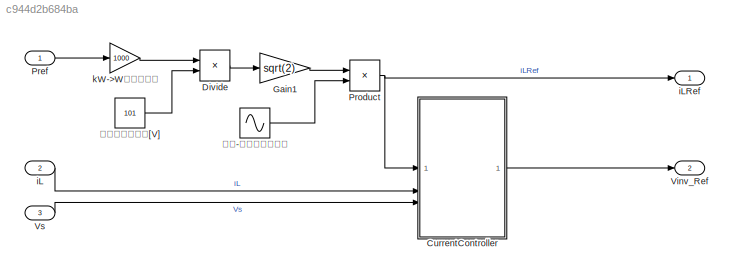
MODEL slx_c944d2b684ba
KIND model
CONFIG AbsTol = 1e-3
CONFIG EnableMultiTasking = off
CONFIG FixedStep = auto
CONFIG MaxStep = 1/10000
CONFIG MinStep = auto
CONFIG RelTol = 1e-3
CONFIG SampleTimeConstraint = Unconstrained
CONFIG SolverName = VariableStepDiscrete
CONFIG StartTime = 0.0
CONFIG StopTime = 20
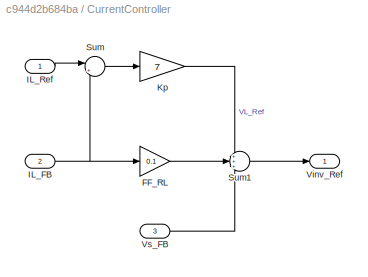
BLOCK [SubSystem] CurrentController
BLOCK [Gain] CurrentController/FF_RL
  Gain = 0.1
BLOCK [Inport] CurrentController/IL_FB
  Port = 2
BLOCK [Inport] CurrentController/IL_Ref
BLOCK [Gain] CurrentController/Kp
  Gain = 7
BLOCK [Sum] CurrentController/Sum
  Inputs = |+-
BLOCK [Sum] CurrentController/Sum1
  Inputs = +++
BLOCK [Outport] CurrentController/Vinv_Ref
BLOCK [Inport] CurrentController/Vs_FB
  Port = 3
BLOCK [Product] Divide
  Inputs = */
BLOCK [Gain] Gain1
  Gain = sqrt(2)
BLOCK [Inport] Pref
  OutDataTypeStr = double
  PortDimensions = 1
  SamplingMode = Sample based
  SignalType = real
BLOCK [Product] Product
BLOCK [Outport] Vinv_Ref
  OutDataTypeStr = double
  Port = 2
  PortDimensions = 1
  SamplingMode = Sample based
  SignalType = real
BLOCK [Inport] Vs
  Port = 3
BLOCK [Inport] iL
  Port = 2
BLOCK [Outport] iLRef
  OutDataTypeStr = double
  PortDimensions = 1
  SamplingMode = Sample based
  SignalType = real
BLOCK [Gain] kW->W変換ゲイン
  Gain = 1000
BLOCK [Sin] 振幅-１の基準正弦波
  Amplitude = -1
  Frequency = 2*pi*60
  SampleTime = 1/10000
BLOCK [Constant] 系統電圧実効値[V]
  Value = 101
LINE CurrentController/FF_RL:1 -> CurrentController/Sum1:2
NET CurrentController/IL_FB:1 -> CurrentController/FF_RL:1, CurrentController/Sum:2
LINE CurrentController/IL_Ref:1 -> CurrentController/Sum:1
LINE CurrentController/Kp:1 -> CurrentController/Sum1:1
LINE CurrentController/Sum1:1 -> CurrentController/Vinv_Ref:1
LINE CurrentController/Sum:1 -> CurrentController/Kp:1
LINE CurrentController/Vs_FB:1 -> CurrentController/Sum1:3
LINE CurrentController:1 -> Vinv_Ref:1
LINE Divide:1 -> Gain1:1
LINE Gain1:1 -> Product:1
LINE Pref:1 -> kW->W変換ゲイン:1
NET Product:1 -> CurrentController:1, iLRef:1
LINE Vs:1 -> CurrentController:3
LINE iL:1 -> CurrentController:2
LINE kW->W変換ゲイン:1 -> Divide:1
LINE 振幅-１の基準正弦波:1 -> Product:2
LINE 系統電圧実効値[V]:1 -> Divide:2
note: NET lines group one-source signal fan-out (src -> all destinations, sorted); 1:1 wires keep LINE
